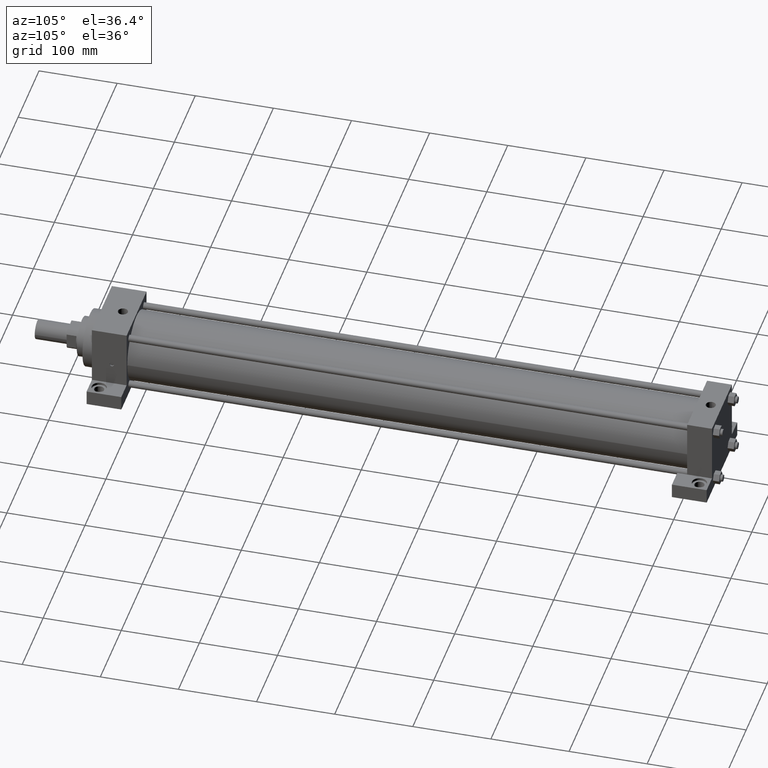
[diagram: clean part render]
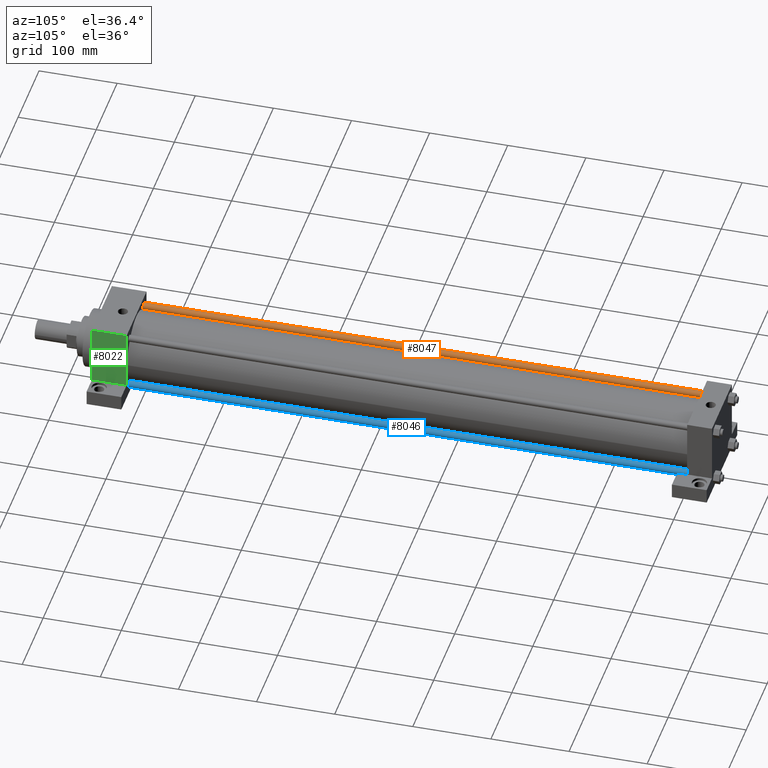
[diagram: same view with three faces highlighted in distinct colors, each labeled with its STEP entity id]
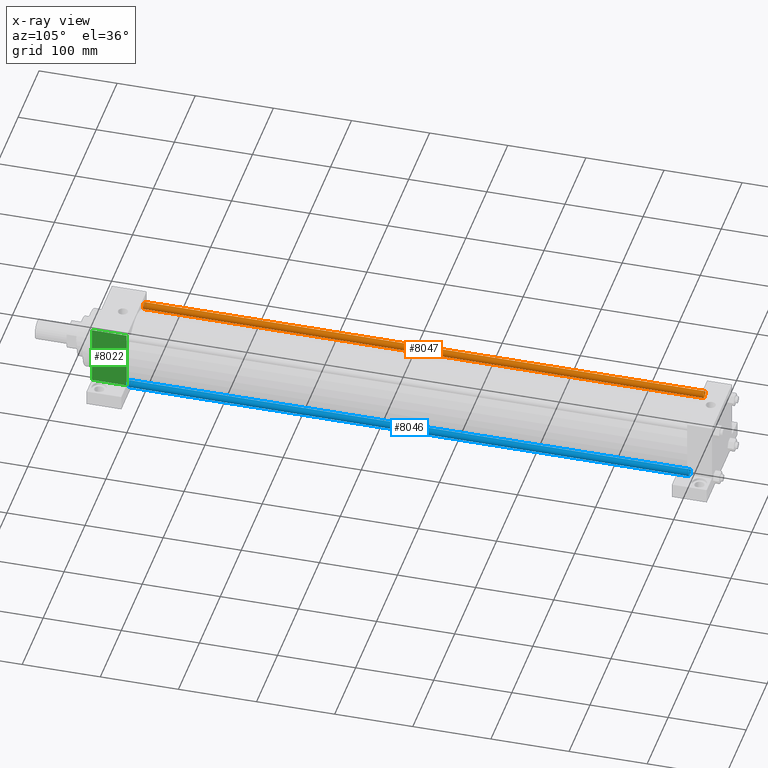
[diagram: x-ray of the same camera — body ghosted, the three highlighted faces saturated]
A machine part, auxiliary view with three faces highlighted in distinct colors.
The next image is the same camera in x-ray (body ghosted, the three faces saturated) — at least one of them is partly hidden behind the body in this view.
Their STEP definitions:

[orange] entity #8047 — the highlighted cylindrical surface (bore or boss wall) has radius 4.3815 mm, axis along (0, -1, 0).
#585=EDGE_CURVE('',#591,#591,#586,.T.);
#586=CIRCLE('',#587,4.381500000E+000);
#587=AXIS2_PLACEMENT_3D('',#588,#589,#590);
#588=CARTESIAN_POINT('',(-3.505200000E+001,8.572500000E+001,3.505200000E+001));
#589=DIRECTION('',(0.0E+000,1.0E+000,0.0E+000));
#590=DIRECTION('',(1.0E+000,0.0E+000,0.0E+000));
#591=VERTEX_POINT('',#592);
#592=CARTESIAN_POINT('',(-3.067050000E+001,8.572500000E+001,3.505200000E+001));
#1188=FACE_OUTER_BOUND('',#1190,.T.);
#1189=FACE_BOUND('',#1191,.T.);
#1190=EDGE_LOOP('',(#1192));
#1191=EDGE_LOOP('',(#1193));
#1192=ORIENTED_EDGE('',*,*,#1247,.F.);
#1193=ORIENTED_EDGE('',*,*,#585,.T.);
#1194=CYLINDRICAL_SURFACE('',#1195,4.381500000E+000);
#1195=AXIS2_PLACEMENT_3D('',#1196,#1197,#1198);
#1196=CARTESIAN_POINT('',(-3.505200000E+001,8.032750000E+002,3.505200000E+001));
#1197=DIRECTION('',(0.0E+000,-1.0E+000,0.0E+000));
#1198=DIRECTION('',(0.0E+000,0.0E+000,-1.0E+000));
#1247=EDGE_CURVE('',#1253,#1253,#1248,.T.);
#1248=CIRCLE('',#1249,4.381500000E+000);
#1249=AXIS2_PLACEMENT_3D('',#1250,#1251,#1252);
#1250=CARTESIAN_POINT('',(-3.505200000E+001,8.032750000E+002,3.505200000E+001));
#1251=DIRECTION('',(0.0E+000,1.0E+000,0.0E+000));
#1252=DIRECTION('',(1.0E+000,0.0E+000,0.0E+000));
#1253=VERTEX_POINT('',#1254);
#1254=CARTESIAN_POINT('',(-3.067050000E+001,8.032750000E+002,3.505200000E+001));
#8047=ADVANCED_FACE('',(#1188,#1189),#1194,.T.);

[blue] entity #8046 — the highlighted cylindrical surface (bore or boss wall) has radius 4.3815 mm, axis along (0, -1, 0).
#594=EDGE_CURVE('',#600,#600,#595,.T.);
#595=CIRCLE('',#596,4.381500000E+000);
#596=AXIS2_PLACEMENT_3D('',#597,#598,#599);
#597=CARTESIAN_POINT('',(3.505200000E+001,8.572500000E+001,-3.505200000E+001));
#598=DIRECTION('',(0.0E+000,1.0E+000,0.0E+000));
#599=DIRECTION('',(1.0E+000,0.0E+000,0.0E+000));
#600=VERTEX_POINT('',#601);
#601=CARTESIAN_POINT('',(3.943350000E+001,8.572500000E+001,-3.505200000E+001));
#1177=FACE_OUTER_BOUND('',#1179,.T.);
#1178=FACE_BOUND('',#1180,.T.);
#1179=EDGE_LOOP('',(#1181));
#1180=EDGE_LOOP('',(#1182));
#1181=ORIENTED_EDGE('',*,*,#1231,.F.);
#1182=ORIENTED_EDGE('',*,*,#594,.T.);
#1183=CYLINDRICAL_SURFACE('',#1184,4.381500000E+000);
#1184=AXIS2_PLACEMENT_3D('',#1185,#1186,#1187);
#1185=CARTESIAN_POINT('',(3.505200000E+001,8.032750000E+002,-3.505200000E+001));
#1186=DIRECTION('',(0.0E+000,-1.0E+000,0.0E+000));
#1187=DIRECTION('',(0.0E+000,0.0E+000,-1.0E+000));
#1231=EDGE_CURVE('',#1237,#1237,#1232,.T.);
#1232=CIRCLE('',#1233,4.381500000E+000);
#1233=AXIS2_PLACEMENT_3D('',#1234,#1235,#1236);
#1234=CARTESIAN_POINT('',(3.505200000E+001,8.032750000E+002,-3.505200000E+001));
#1235=DIRECTION('',(0.0E+000,1.0E+000,0.0E+000));
#1236=DIRECTION('',(1.0E+000,0.0E+000,0.0E+000));
#1237=VERTEX_POINT('',#1238);
#1238=CARTESIAN_POINT('',(3.943350000E+001,8.032750000E+002,-3.505200000E+001));
#8046=ADVANCED_FACE('',(#1177,#1178),#1183,.T.);

[green] entity #8022 — the highlighted planar face has unit normal (1, 0, 0).
#570=VERTEX_POINT('',#571);
#571=CARTESIAN_POINT('',(4.762500000E+001,8.572500000E+001,4.762500000E+001));
#572=EDGE_CURVE('',#577,#570,#573,.T.);
#573=LINE('',#574,#575);
#574=CARTESIAN_POINT('',(4.762500000E+001,8.572500000E+001,-4.762500000E+001));
#575=VECTOR('',#576,1.0E+000);
#576=DIRECTION('',(0.0E+000,0.0E+000,1.0E+000));
#577=VERTEX_POINT('',#578);
#578=CARTESIAN_POINT('',(4.762500000E+001,8.572500000E+001,-2.857500000E+001));
#649=VERTEX_POINT('',#650);
#650=CARTESIAN_POINT('',(4.762500000E+001,4.127500000E+001,-2.857500000E+001));
#651=EDGE_CURVE('',#649,#656,#652,.T.);
#652=LINE('',#653,#654);
#653=CARTESIAN_POINT('',(4.762500000E+001,4.127500000E+001,-4.762500000E+001));
#654=VECTOR('',#655,1.0E+000);
#655=DIRECTION('',(0.0E+000,0.0E+000,1.0E+000));
#656=VERTEX_POINT('',#657);
#657=CARTESIAN_POINT('',(4.762500000E+001,4.127500000E+001,4.762500000E+001));
#730=FACE_OUTER_BOUND('',#732,.T.);
#731=FACE_BOUND('',#733,.T.);
#732=EDGE_LOOP('',(#734));
#733=EDGE_LOOP('',(#743,#744,#745,#746));
#734=ORIENTED_EDGE('',*,*,#735,.T.);
#735=EDGE_CURVE('',#741,#741,#736,.T.);
#736=CIRCLE('',#737,2.778125000E+000);
#737=AXIS2_PLACEMENT_3D('',#738,#739,#740);
#738=CARTESIAN_POINT('',(4.762500000E+001,6.667500000E+001,0.000000000E+000));
#739=DIRECTION('',(-1.0E+000,0.0E+000,0.0E+000));
#740=DIRECTION('',(0.0E+000,0.0E+000,-1.0E+000));
#741=VERTEX_POINT('',#742);
#742=CARTESIAN_POINT('',(4.762500000E+001,6.667500000E+001,-2.778125000E+000));
#743=ORIENTED_EDGE('',*,*,#747,.F.);
#744=ORIENTED_EDGE('',*,*,#572,.T.);
#745=ORIENTED_EDGE('',*,*,#752,.T.);
#746=ORIENTED_EDGE('',*,*,#651,.F.);
#747=EDGE_CURVE('',#577,#649,#748,.T.);
#748=LINE('',#749,#750);
#749=CARTESIAN_POINT('',(4.762500000E+001,8.572500000E+001,-2.857500000E+001));
#750=VECTOR('',#751,1.0E+000);
#751=DIRECTION('',(0.0E+000,-1.0E+000,0.0E+000));
#752=EDGE_CURVE('',#570,#656,#753,.T.);
#753=LINE('',#754,#755);
#754=CARTESIAN_POINT('',(4.762500000E+001,8.572500000E+001,4.762500000E+001));
#755=VECTOR('',#756,1.0E+000);
#756=DIRECTION('',(0.0E+000,-1.0E+000,0.0E+000));
#757=PLANE('',#758);
#758=AXIS2_PLACEMENT_3D('',#759,#760,#761);
#759=CARTESIAN_POINT('',(4.762500000E+001,8.572500000E+001,-4.762500000E+001));
#760=DIRECTION('',(1.0E+000,0.0E+000,0.0E+000));
#761=DIRECTION('',(0.0E+000,0.0E+000,-1.0E+000));
#8022=ADVANCED_FACE('',(#730,#731),#757,.T.);